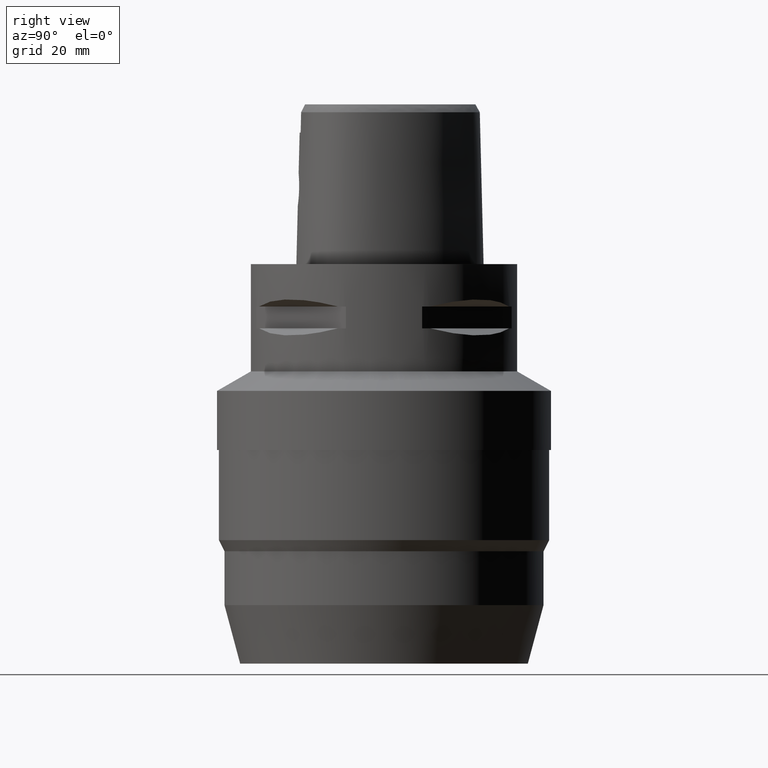
[diagram: clean part render]
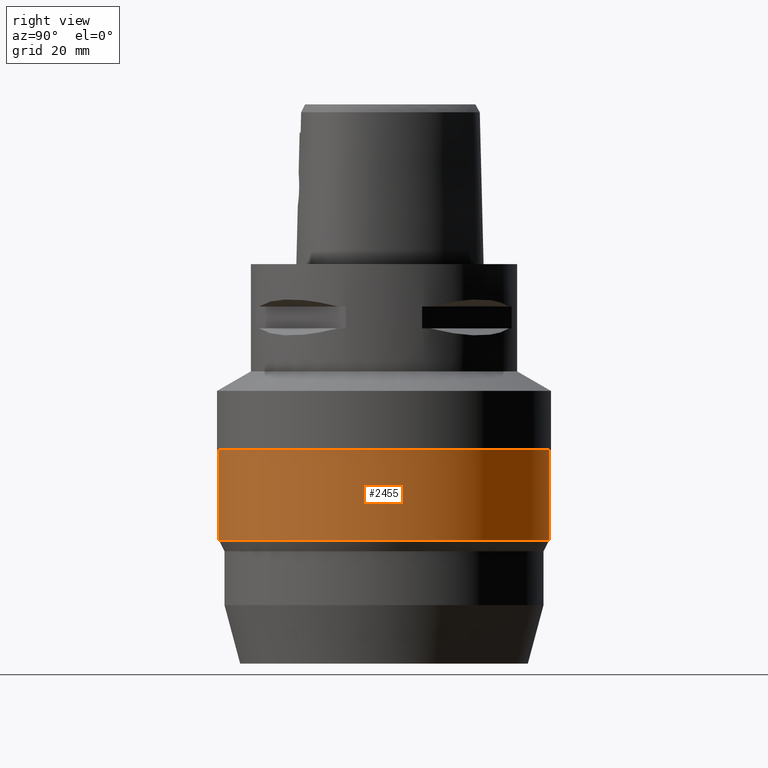
[diagram: same view with one face highlighted and labeled with its STEP entity id]
A machine part, right view. The second image highlights one B-rep face of the part: STEP entity #2455.
In plain terms, the highlighted cylindrical surface (partial cylindrical patch) has radius 31 mm, axis along (0, 0, -1).
Its self-contained STEP definition (entity closure, byte-faithful):
#576=CARTESIAN_POINT('',(0.E0,1.270571054115E-14,-3.49E1));
#577=DIRECTION('',(0.E0,0.E0,-1.E0));
#578=DIRECTION('',(0.E0,1.E0,0.E0));
#579=AXIS2_PLACEMENT_3D('',#576,#577,#578);
#584=DIRECTION('',(0.E0,-8.591730637577E-14,-1.E0));
#585=VECTOR('',#584,1.691230737931E1);
#586=CARTESIAN_POINT('',(0.E0,-3.1E1,-3.49E1));
#587=LINE('',#586,#585);
#591=DIRECTION('',(0.E0,8.570723961201E-14,-1.E0));
#592=VECTOR('',#591,1.691230737931E1);
#593=CARTESIAN_POINT('',(0.E0,3.1E1,-3.49E1));
#594=LINE('',#593,#592);
#613=CARTESIAN_POINT('',(0.E0,0.E0,-5.181230737931E1));
#614=DIRECTION('',(0.E0,0.E0,1.E0));
#615=DIRECTION('',(0.E0,-1.E0,0.E0));
#616=AXIS2_PLACEMENT_3D('',#613,#614,#615);
#1550=CARTESIAN_POINT('',(0.E0,-3.1E1,-3.49E1));
#1551=CARTESIAN_POINT('',(0.E0,3.1E1,-3.49E1));
#1552=VERTEX_POINT('',#1550);
#1553=VERTEX_POINT('',#1551);
#1554=CARTESIAN_POINT('',(0.E0,3.1E1,-5.181230737931E1));
#1555=VERTEX_POINT('',#1554);
#1556=CARTESIAN_POINT('',(0.E0,-3.1E1,-5.181230737931E1));
#1557=VERTEX_POINT('',#1556);
#2443=CARTESIAN_POINT('',(0.E0,1.270571054115E-14,3.75E0));
#2444=DIRECTION('',(0.E0,0.E0,-1.E0));
#2445=DIRECTION('',(0.E0,-1.E0,0.E0));
#2446=AXIS2_PLACEMENT_3D('',#2443,#2444,#2445);
#2447=CYLINDRICAL_SURFACE('',#2446,3.1E1);
#2448=ORIENTED_EDGE('',*,*,#2433,.T.);
#2450=ORIENTED_EDGE('',*,*,#2449,.F.);
#2451=ORIENTED_EDGE('',*,*,#2436,.F.);
#2452=ORIENTED_EDGE('',*,*,#2423,.F.);
#2453=EDGE_LOOP('',(#2448,#2450,#2451,#2452));
#2454=FACE_OUTER_BOUND('',#2453,.F.);
#580=CIRCLE('',#579,3.1E1);
#617=CIRCLE('',#616,3.1E1);
#2423=EDGE_CURVE('',#1553,#1552,#580,.T.);
#2433=EDGE_CURVE('',#1553,#1555,#594,.T.);
#2436=EDGE_CURVE('',#1552,#1557,#587,.T.);
#2449=EDGE_CURVE('',#1557,#1555,#617,.T.);
#2455=ADVANCED_FACE('',(#2454),#2447,.T.);